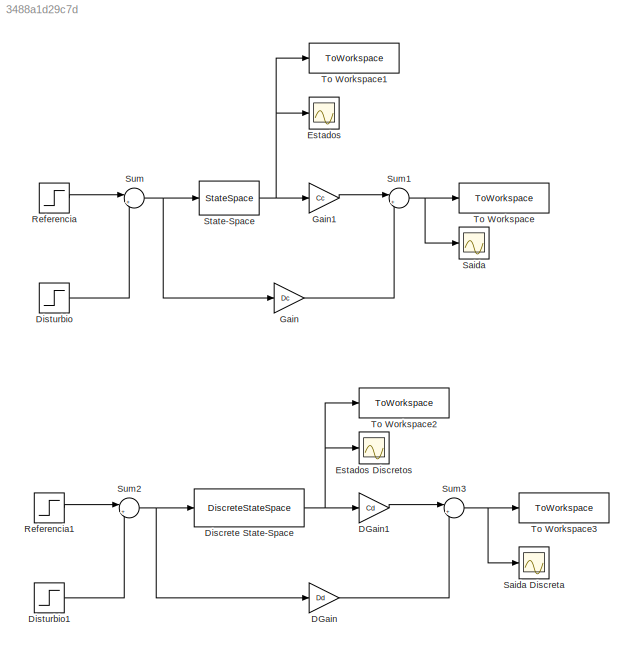
MODEL slx_3488a1d29c7d
KIND model
CONFIG AbsTol = auto
CONFIG EnableMultiTasking = off
CONFIG FixedStep = auto
CONFIG MaxStep = auto
CONFIG MinStep = auto
CONFIG RelTol = 1e-3
CONFIG SampleTimeConstraint = Unconstrained
CONFIG SolverName = VariableStepAuto
CONFIG StartTime = 0.0
CONFIG StopTime = 30
BLOCK [Gain] DGain
  Gain = Dd
BLOCK [Gain] DGain1
  Gain = Cd
  Multiplication = Matrix(K*u)
BLOCK [DiscreteStateSpace] Discrete State-Space
  A = F
  B = H
  C = [1 0; 0 1]
  D = [0;0]
  SampleTime = -1
BLOCK [Step] Disturbio
  After = d
  SampleTime = 0
  Time = td
BLOCK [Step] Disturbio1
  After = d
  SampleTime = 0
  Time = td
BLOCK [Scope] Estados
  Floating = off
  NumInputPorts = 1
  ScopeSpecificationString = Simulink.scopes.TimeScopeBlockCfg('CurrentConfiguration', extmgr.ConfigurationSet(extmgr.Configuration('Core','General UI',true),extmgr.Configuration('Core','Source UI',true),extmgr.Configuration('Sources','WiredSimulink',true),extmgr.Configuration('Visuals','Time Domain',true),extmgr.Configuration('Tools','Plot Navigation',true),extmgr.Configuration('Tools','Measurements',true)),'Version','2022b'...<+1ch>
BLOCK [Scope] Estados Discretos
  Floating = off
  NumInputPorts = 1
  ScopeSpecificationString = Simulink.scopes.TimeScopeBlockCfg('CurrentConfiguration', extmgr.ConfigurationSet(extmgr.Configuration('Core','General UI',true),extmgr.Configuration('Core','Source UI',true),extmgr.Configuration('Sources','WiredSimulink',true,'DataLoggingVariableName','ScopeData2'),extmgr.Configuration('Visuals','Time Domain',true),extmgr.Configuration('Tools','Plot Navigation',true),extmgr.Configuration('Tools',...<+40ch>
BLOCK [Gain] Gain
  Gain = Dc
BLOCK [Gain] Gain1
  Gain = Cc
  Multiplication = Matrix(K*u)
BLOCK [Step] Referencia
  After = R
  SampleTime = 0
  Time = 0
BLOCK [Step] Referencia1
  After = R
  SampleTime = 0
  Time = 0
BLOCK [Scope] Saida
  Floating = off
  NumInputPorts = 1
  ScopeSpecificationString = Simulink.scopes.TimeScopeBlockCfg('CurrentConfiguration', extmgr.ConfigurationSet(extmgr.Configuration('Core','General UI',true),extmgr.Configuration('Core','Source UI',true),extmgr.Configuration('Sources','WiredSimulink',true,'DataLoggingVariableName','ScopeData1'),extmgr.Configuration('Visuals','Time Domain',true),extmgr.Configuration('Tools','Plot Navigation',true),extmgr.Configuration('Tools',...<+40ch>
BLOCK [Scope] Saida Discreta
  Floating = off
  NumInputPorts = 1
  ScopeSpecificationString = Simulink.scopes.TimeScopeBlockCfg('CurrentConfiguration', extmgr.ConfigurationSet(extmgr.Configuration('Core','General UI',true),extmgr.Configuration('Core','Source UI',true),extmgr.Configuration('Sources','WiredSimulink',true,'DataLoggingVariableName','ScopeData3'),extmgr.Configuration('Visuals','Time Domain',true,'SerializedDisplays',{struct('MinYLimReal','-0.15625','MaxYLimReal','1.40625','YLab...<+1363ch>
BLOCK [StateSpace] State-Space
  A = Ac
  B = Bc
  C = [1 0; 0 1]
  D = [0;0]
  InitialCondition = 0
  ParameterTunability = Unconstrained
BLOCK [Sum] Sum
  Inputs = |++
BLOCK [Sum] Sum1
  Inputs = |++
BLOCK [Sum] Sum2
  Inputs = |++
BLOCK [Sum] Sum3
  Inputs = |++
BLOCK [ToWorkspace] To Workspace
  FixptAsFi = on
  MaxDataPoints = inf
  SampleTime = -1
  SaveFormat = Timeseries
  VariableName = y
BLOCK [ToWorkspace] To Workspace1
  FixptAsFi = on
  MaxDataPoints = inf
  SampleTime = -1
  SaveFormat = Timeseries
  VariableName = x
BLOCK [ToWorkspace] To Workspace2
  FixptAsFi = on
  MaxDataPoints = inf
  SampleTime = -1
  SaveFormat = Timeseries
  VariableName = xd
BLOCK [ToWorkspace] To Workspace3
  FixptAsFi = on
  MaxDataPoints = inf
  SampleTime = -1
  SaveFormat = Timeseries
  VariableName = yd
LINE DGain1:1 -> Sum3:1
LINE DGain:1 -> Sum3:2
NET Discrete State-Space:1 -> DGain1:1, Estados Discretos:1, To Workspace2:1
LINE Disturbio1:1 -> Sum2:2
LINE Disturbio:1 -> Sum:2
LINE Gain1:1 -> Sum1:1
LINE Gain:1 -> Sum1:2
LINE Referencia1:1 -> Sum2:1
LINE Referencia:1 -> Sum:1
NET State-Space:1 -> Estados:1, Gain1:1, To Workspace1:1
NET Sum1:1 -> Saida:1, To Workspace:1
NET Sum2:1 -> DGain:1, Discrete State-Space:1
NET Sum3:1 -> Saida Discreta:1, To Workspace3:1
NET Sum:1 -> Gain:1, State-Space:1
note: NET lines group one-source signal fan-out (src -> all destinations, sorted); 1:1 wires keep LINE
